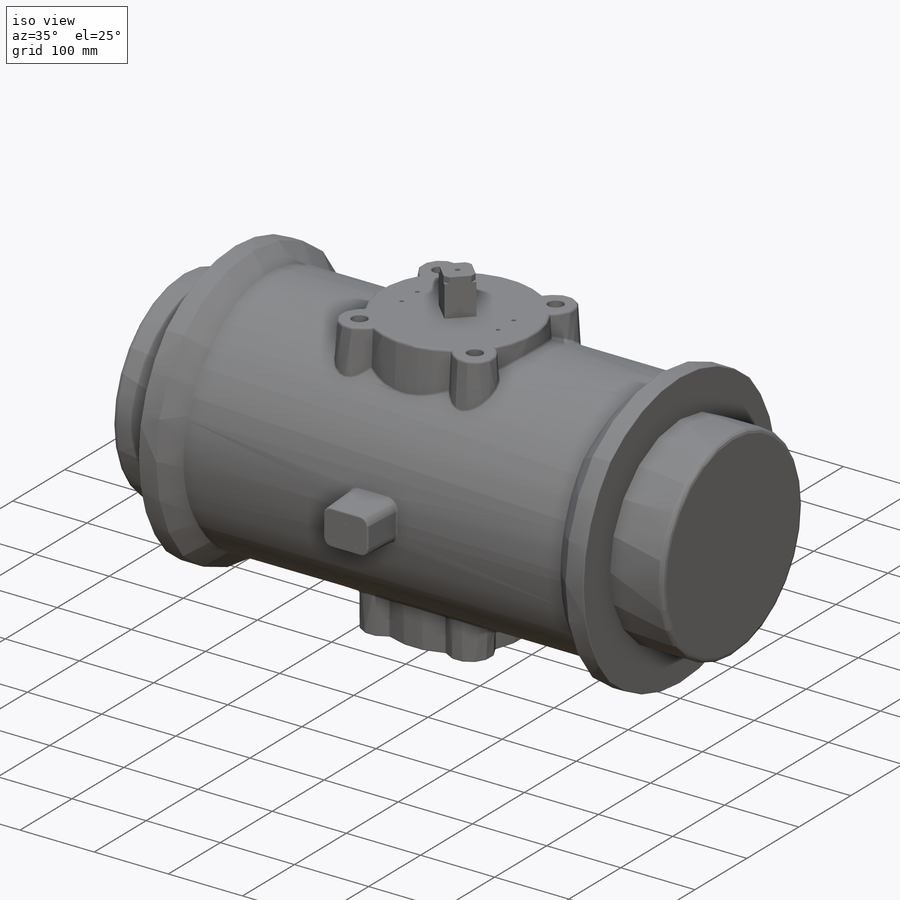
[diagram: iso view]
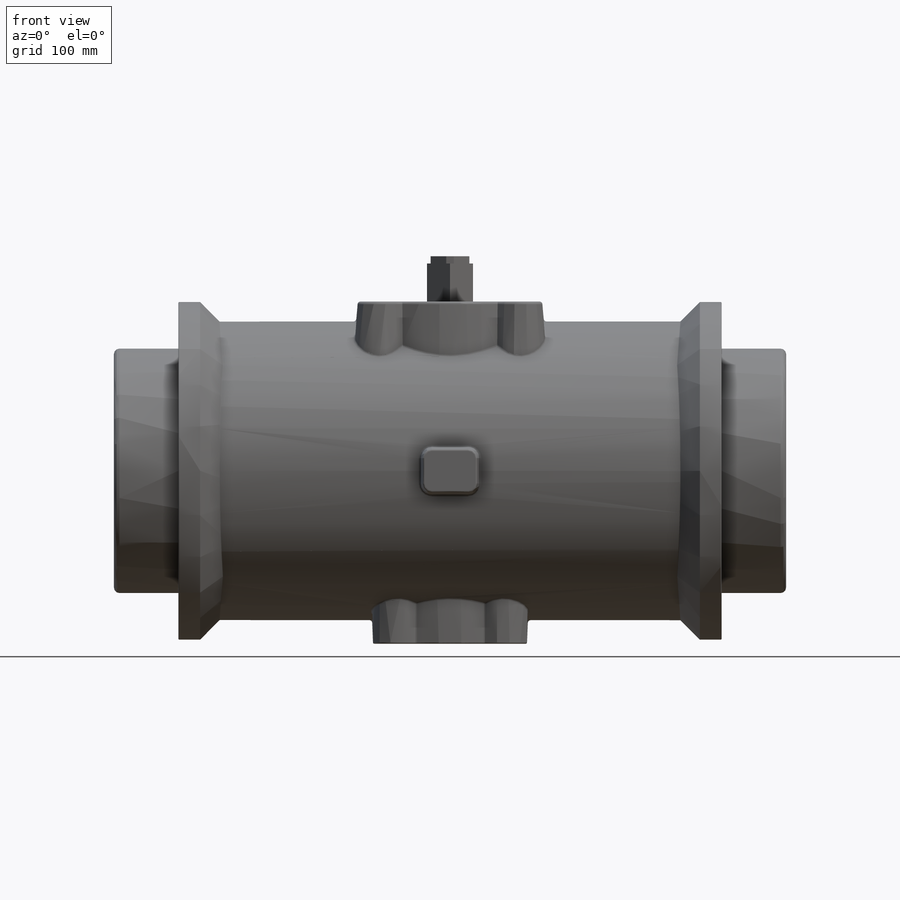
[diagram: front view]
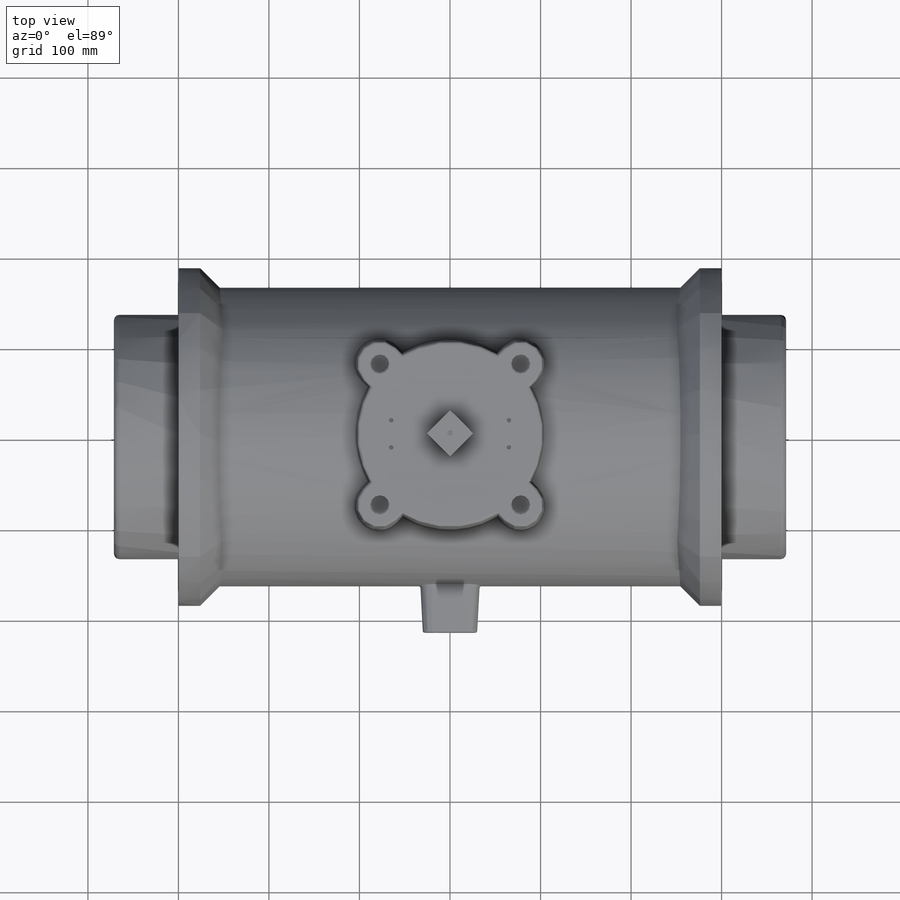
[diagram: top view]
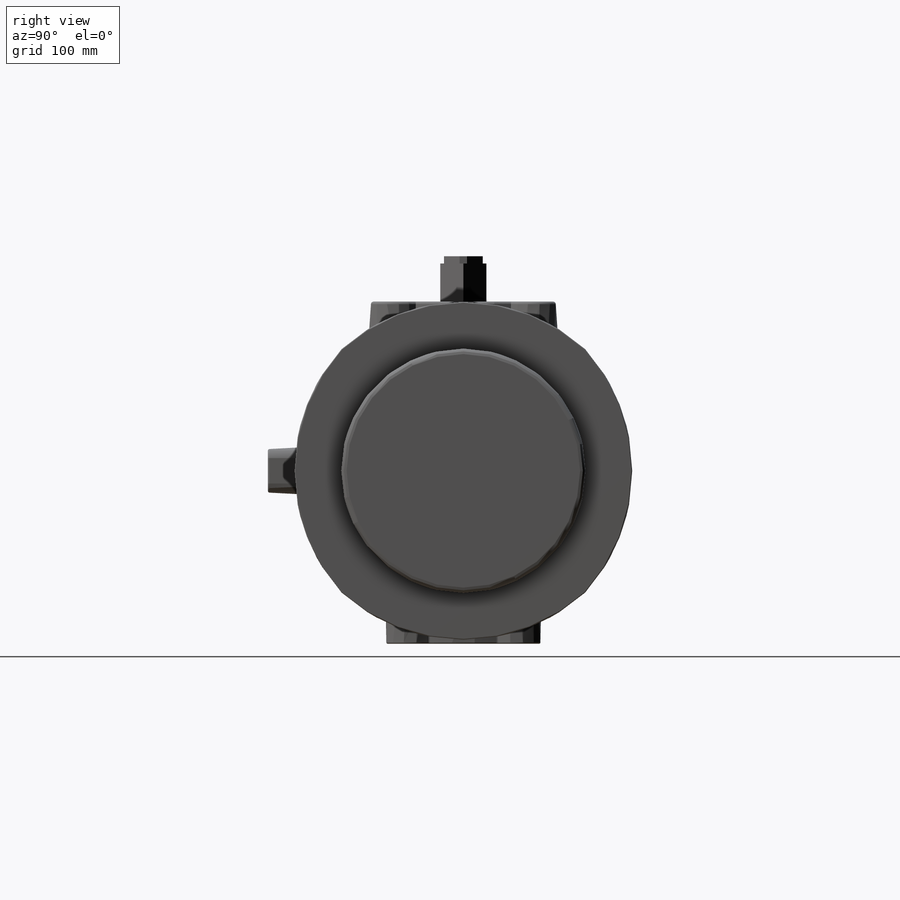
[diagram: right view]
SOLIDWORKS PART (.sldprt)
format: sldprt  version: not decoded by parser v0  size: 829,440 bytes
history: native  units: mm
features: sketch x16, extrude x8, cut_extrude x8, plane x6, fillet x6, mirror x3, chamfer x2, material x1 (+12 scaffold rows collapsed)
feature tree (62):
  scaffold x12  (default folders/planes/origin — collapsed)
  material  "Material <not specified>"
  plane  "Plane1"  Offset=300mm
  sketch  "Sketch1"  dims[c1.D3=200.0mm c1.D4=400.0mm c2.D3=200.0mm c2.D1=94.0mm c2.D2=94.0mm c3.D3=94.0mm c3.D2=94.0mm c3.D5=94.0mm c3.D1=186.5mm c4.D2=186.5mm]
  extrude  "Extrude1"  Depth=24mm
  sketch  "Sketch2"  dims[D1=330.0mm]
  extrude  "Extrude2"  Depth=600mm
  mirror  "Mirror1"
  plane  "Plane2"  Offset=371.25mm
  sketch  "Sketch3"  dims[D1=270.0mm]
  extrude  "Extrude3"  Depth=71.25mm
  fillet  "Fillet1"  Radius=6mm
  mirror  "Mirror2"
  sketch  "Sketch4"
  extrude  "Extrude5"  Depth=40mm
  mirror  "Mirror3"
  fillet  "Fillet7"  Radius=1mm
  plane  "Plane3"  Offset=191mm
  sketch  "Sketch5"  dims[c1.D1=172.0mm c1.D2=165.0mm c1.D4=55.0mm c1.D5=3.0mm c1.D3=~127.262801mm c2.D3=45.0deg]
  extrude  "Extrude6"  [1 undecoded]
  fillet  "Fillet8"  Radius=1.5mm
  fillet  "Fillet9"  Radius=3mm
  sketch  "Sketch6"  dims[c1.D1=165.0mm c1.D3=20.0mm c1.D2=~88.695736mm c2.D2=45.0deg]
  cut_extrude  "Cut-Extrude1"  Depth=40mm
  chamfer  "Chamfer1"  Distance=1mm Angle=45deg
  sketch  "Sketch7"  dims[c1.D1=61.0mm c1.D2=~43.672998mm c2.D2=45.0deg c2.D3=46.0mm c2.D4=46.0mm c2.D1=46.0mm c2.D5=46.0mm c2.D6=46.0mm c2.D7=~45.647894mm c3.D7=45.0deg]
  cut_extrude  "Cut-Extrude2"  Depth=52mm
  sketch  "Sketch8"  dims[D1=1.0mm]
  cut_extrude  "Cut-Extrude3"  Depth=15mm
  plane  "Plane4"  Offset=428mm
  sketch  "Sketch9"  dims[c1.D1=~193.196203mm c2.D1=45.0deg c2.D2=36.0mm]
  extrude  "Extrude8"  Depth=15mm
  plane  "Plane5"  Offset=50mm
  sketch  "Sketch10"  dims[c1.D1=205.0mm c1.D2=220.0mm c1.D4=50.0mm c1.D3=~99.683544mm c2.D3=45.0deg]
  extrude  "Extrude9"  [1 undecoded]
  fillet  "Fillet10"  Radius=3mm
  sketch  "Sketch11"  dims[D1=43.5mm]
  cut_extrude  "Cut-Extrude4"  Depth=8mm
  sketch  "Sketch12"  dims[D3=~5.00126mm D1=30.0mm D2=130.0mm]
  cut_extrude  "Cut-Extrude5"  Depth=10mm
  sketch  "Sketch13"  dims[D1=220.0mm D2=20.0mm]
  cut_extrude  "Cut-Extrude6"  Depth=22mm
  chamfer  "Chamfer2"  Distance=1mm Angle=45deg
  plane  "Plane6"  Offset=216mm
  sketch  "Sketch14"  dims[D3=10.0mm D1=48.0mm D2=60.0mm]
  extrude  "Extrude10"  [1 undecoded]
  sketch  "Sketch15"  dims[D1=~8.323663mm D2=13.0mm D3=8.32mm]
  cut_extrude  "Cut-Extrude7"  Depth=0.1mm
  fillet  "Fillet11"  Radius=2mm
  sketch  "Sketch16"  dims[D1=~5.99948mm]
  cut_extrude  "Cut-Extrude8"  Depth=12mm
decode coverage: 36 of 43 modeling features carry decoded parameters
note: ~ marks probable driven/reference dimensions
note: 3 parameter values undecoded
summary: no parameter record found for 3 features
note: suppression state not decoded; provenance and decode notes live in map.json
